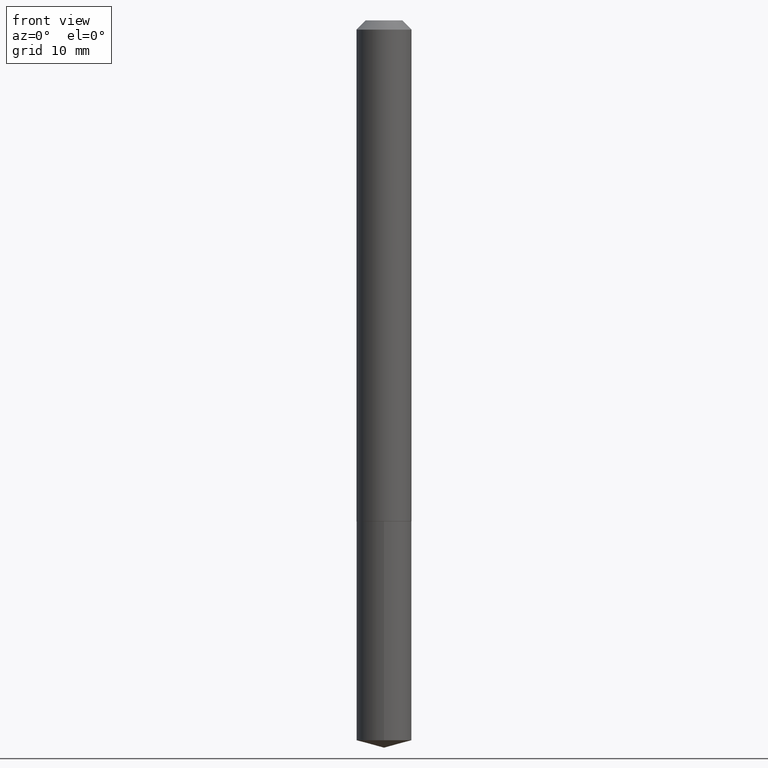
[diagram: clean part render]
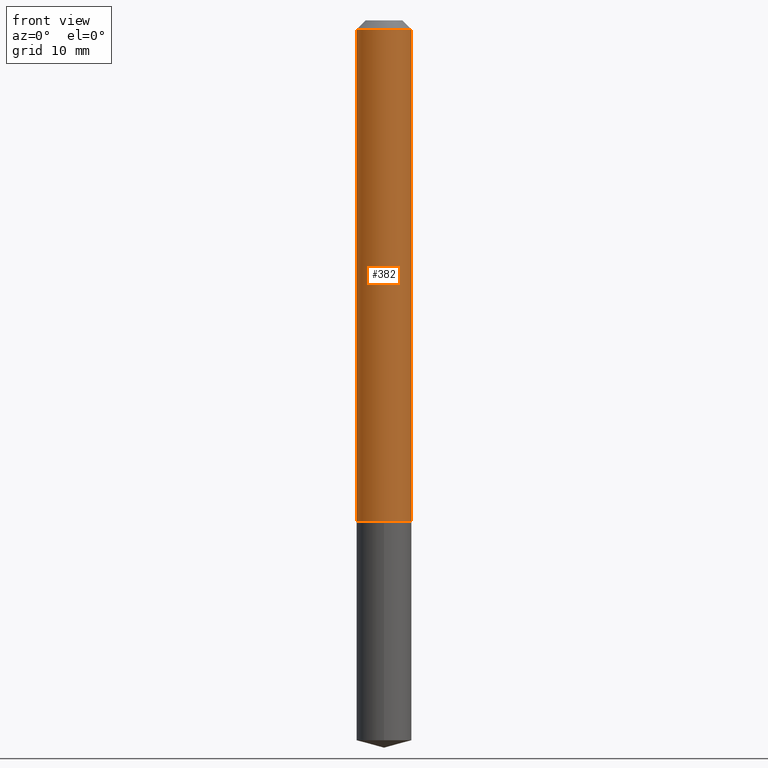
[diagram: same view with one face highlighted and labeled with its STEP entity id]
A machine part, front view. The second image highlights one B-rep face of the part: STEP entity #382.
In plain terms, the highlighted cylindrical surface (edge-blend (fillet) strip) has radius 2.3495 mm, axis along (-0, 0, 1).
Its self-contained STEP definition (entity closure, byte-faithful):
#4 = CIRCLE ( 'NONE', #92, 0.09250000000000020706 ) ;
#9 = CARTESIAN_POINT ( 'NONE',  ( -0.09250000000000010991, 6.572520305780934529E-16, -4.550014958485793075E-30 ) ) ;
#10 = ORIENTED_EDGE ( 'NONE', *, *, #228, .F. ) ;
#25 = DIRECTION ( 'NONE',  ( 1.000000000000000000, -6.982962677686270655E-15, 0.000000000000000000 ) ) ;
#31 = EDGE_CURVE ( 'NONE', #385, #267, #4, .T. ) ;
#43 = AXIS2_PLACEMENT_3D ( 'NONE', #168, #341, #278 ) ;
#55 = DIRECTION ( 'NONE',  ( -2.445468806185136877E-29, 3.491481338843145188E-15, 1.000000000000000000 ) ) ;
#64 = LINE ( 'NONE', #379, #217 ) ;
#84 = VERTEX_POINT ( 'NONE', #384 ) ;
#92 = AXIS2_PLACEMENT_3D ( 'NONE', #175, #290, #25 ) ;
#103 = FACE_OUTER_BOUND ( 'NONE', #195, .T. ) ;
#121 = EDGE_CURVE ( 'NONE', #84, #206, #204, .T. ) ;
#135 = ORIENTED_EDGE ( 'NONE', *, *, #362, .T. ) ;
#140 = CARTESIAN_POINT ( 'NONE',  ( 0.09249999999999999889, -7.550328395248287911E-16, -0.03125000000000020817 ) ) ;
#168 = CARTESIAN_POINT ( 'NONE',  ( 7.642090019328602662E-31, -1.091087918388490267E-16, -0.03125000000000020817 ) ) ;
#175 = CARTESIAN_POINT ( 'NONE',  ( 4.109610328794123271E-29, -5.867434389925906997E-15, -1.680500000000000327 ) ) ;
#195 = EDGE_LOOP ( 'NONE', ( #10, #253, #135, #318 ) ) ;
#196 = CARTESIAN_POINT ( 'NONE',  ( -0.09250000000000020706, -5.210182359347813347E-15, -1.680500000000000327 ) ) ;
#204 = CIRCLE ( 'NONE', #43, 0.09249999999999999889 ) ;
#206 = VERTEX_POINT ( 'NONE', #140 ) ;
#217 = VECTOR ( 'NONE', #365, 39.37007874015748143 ) ;
#228 = EDGE_CURVE ( 'NONE', #385, #84, #319, .T. ) ;
#253 = ORIENTED_EDGE ( 'NONE', *, *, #31, .T. ) ;
#267 = VERTEX_POINT ( 'NONE', #299 ) ;
#278 = DIRECTION ( 'NONE',  ( 1.000000000000000000, -6.982962677686266711E-15, 0.000000000000000000 ) ) ;
#290 = DIRECTION ( 'NONE',  ( -2.445468806185136597E-29, 3.491481338843145583E-15, 1.000000000000000000 ) ) ;
#299 = CARTESIAN_POINT ( 'NONE',  ( 0.09250000000000020706, -6.513358437611888561E-15, -1.680500000000000327 ) ) ;
#313 = DIRECTION ( 'NONE',  ( 1.000000000000000000, -6.982962677686267499E-15, 4.876176775795935232E-29 ) ) ;
#316 = DIRECTION ( 'NONE',  ( -2.445468806185136597E-29, 3.491481338843145583E-15, 1.000000000000000000 ) ) ;
#318 = ORIENTED_EDGE ( 'NONE', *, *, #121, .F. ) ;
#319 = LINE ( 'NONE', #9, #328 ) ;
#328 = VECTOR ( 'NONE', #55, 39.37007874015748143 ) ;
#341 = DIRECTION ( 'NONE',  ( -2.445468806185136597E-29, 3.491481338843145583E-15, 1.000000000000000000 ) ) ;
#347 = CYLINDRICAL_SURFACE ( 'NONE', #368, 0.09250000000000010991 ) ;
#362 = EDGE_CURVE ( 'NONE', #267, #206, #64, .T. ) ;
#365 = DIRECTION ( 'NONE',  ( -2.445468806185136877E-29, 3.491481338843145188E-15, 1.000000000000000000 ) ) ;
#368 = AXIS2_PLACEMENT_3D ( 'NONE', #376, #316, #313 ) ;
#376 = CARTESIAN_POINT ( 'NONE',  ( 0.000000000000000000, 0.000000000000000000, 0.000000000000000000 ) ) ;
#379 = CARTESIAN_POINT ( 'NONE',  ( 0.09250000000000010991, -6.459240476859804793E-16, 4.510463517611245653E-30 ) ) ;
#382 = ADVANCED_FACE ( 'NONE', ( #103 ), #347, .T. ) ;
#384 = CARTESIAN_POINT ( 'NONE',  ( -0.09249999999999999889, -2.331019560304282821E-15, -0.03125000000000020817 ) ) ;
#385 = VERTEX_POINT ( 'NONE', #196 ) ;